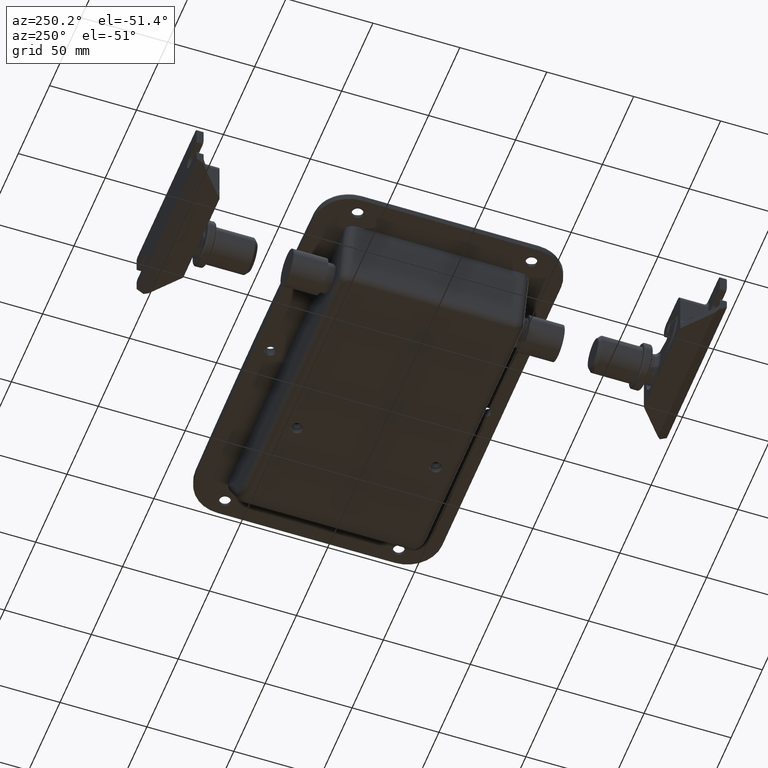
[diagram: clean part render]
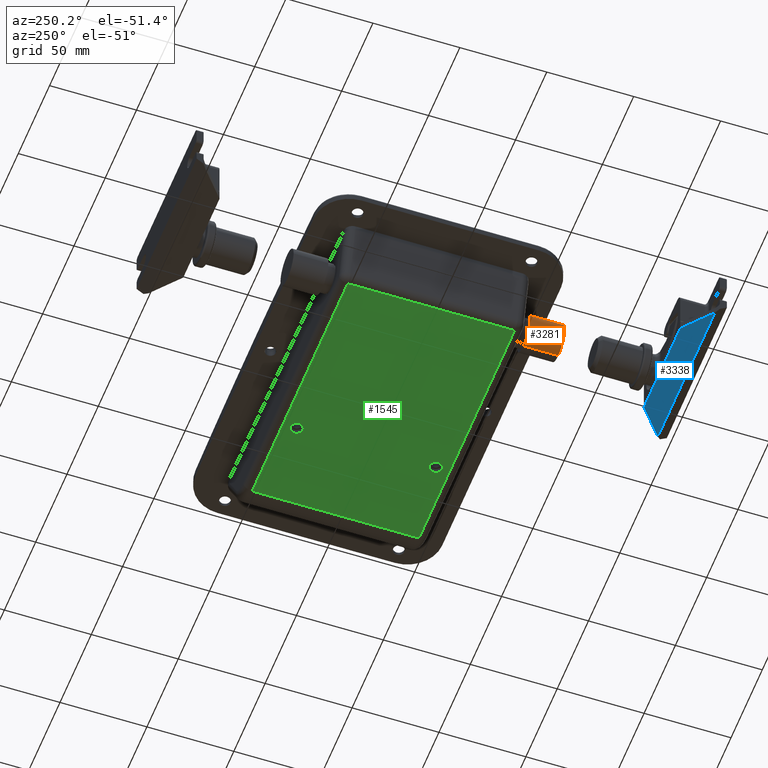
[diagram: same view with three faces highlighted in distinct colors, each labeled with its STEP entity id]
A machine part, auxiliary view with three faces highlighted in distinct colors.
Their STEP definitions:

[orange] entity #3281 — the highlighted cylindrical surface (edge-blend (fillet) strip) has radius 10.5 mm, axis along (-0, 1, -0).
#1138 = VERTEX_POINT ( 'NONE', #8888 ) ;
#1146 = VERTEX_POINT ( 'NONE', #8896 ) ;
#1147 = VERTEX_POINT ( 'NONE', #8897 ) ;
#1160 = VERTEX_POINT ( 'NONE', #8910 ) ;
#3281 = ADVANCED_FACE ( 'NONE', ( #15901 ), #15902, .T. ) ;
#4951 = ORIENTED_EDGE ( 'NONE', *, *, #6340, .T. ) ;
#4952 = ORIENTED_EDGE ( 'NONE', *, *, #6341, .T. ) ;
#4953 = ORIENTED_EDGE ( 'NONE', *, *, #6342, .F. ) ;
#4954 = ORIENTED_EDGE ( 'NONE', *, *, #6343, .F. ) ;
#5447 = EDGE_LOOP ( 'NONE', ( #4951, #4952, #4953, #4954 ) ) ;
#6340 = EDGE_CURVE ( 'NONE', #1138, #1146, #24493, .T. ) ;
#6341 = EDGE_CURVE ( 'NONE', #1146, #1160, #24492, .T. ) ;
#6342 = EDGE_CURVE ( 'NONE', #1147, #1160, #24496, .T. ) ;
#6343 = EDGE_CURVE ( 'NONE', #1138, #1147, #24495, .T. ) ;
#8888 = CARTESIAN_POINT ( 'NONE',  ( 20.00000000000000400, -10.50000000000000000, 0.0000000000000000000 ) ) ;
#8896 = CARTESIAN_POINT ( 'NONE',  ( 20.00000000000000400, 10.50000000000000000, 1.285879139104720800E-015 ) ) ;
#8897 = CARTESIAN_POINT ( 'NONE',  ( 3.432072914847288700E-016, -10.50000000000000000, 0.0000000000000000000 ) ) ;
#8910 = CARTESIAN_POINT ( 'NONE',  ( -3.432072914847288700E-016, 10.50000000000000000, 1.285879139104720800E-015 ) ) ;
#13399 = AXIS2_PLACEMENT_3D ( 'NONE', #17573, #17574, #17575 ) ;
#15901 = FACE_OUTER_BOUND ( 'NONE', #5447, .T. ) ;
#15902 = CYLINDRICAL_SURFACE ( 'NONE', #13399, 10.50000000000000000 ) ;
#17573 = CARTESIAN_POINT ( 'NONE',  ( -42.49999999999999300, -2.042900544551957000E-015, 0.0000000000000000000 ) ) ;
#17574 = DIRECTION ( 'NONE',  ( -1.000000000000000000, -3.268640871283131500E-017, -0.0000000000000000000 ) ) ;
#17575 = DIRECTION ( 'NONE',  ( 0.0000000000000000000, -1.000000000000000000, 0.0000000000000000000 ) ) ;
#23044 = AXIS2_PLACEMENT_3D ( 'NONE', #23564, #23565, #23566 ) ;
#23045 = AXIS2_PLACEMENT_3D ( 'NONE', #23569, #23570, #23571 ) ;
#23564 = CARTESIAN_POINT ( 'NONE',  ( 20.00000000000000400, 0.0000000000000000000, 0.0000000000000000000 ) ) ;
#23565 = DIRECTION ( 'NONE',  ( -1.000000000000000000, -3.268640871283131500E-017, -0.0000000000000000000 ) ) ;
#23566 = DIRECTION ( 'NONE',  ( 0.0000000000000000000, -1.000000000000000000, 0.0000000000000000000 ) ) ;
#23567 = CARTESIAN_POINT ( 'NONE',  ( -42.49999999999999300, 10.49999999999999800, 1.285879139104720800E-015 ) ) ;
#23568 = DIRECTION ( 'NONE',  ( -1.000000000000000000, -3.268640871283131500E-017, -0.0000000000000000000 ) ) ;
#23569 = CARTESIAN_POINT ( 'NONE',  ( 0.0000000000000000000, -6.537281742566265000E-016, 0.0000000000000000000 ) ) ;
#23570 = DIRECTION ( 'NONE',  ( -1.000000000000000000, -3.268640871283131500E-017, -0.0000000000000000000 ) ) ;
#23571 = DIRECTION ( 'NONE',  ( 3.268640871283132100E-017, -1.000000000000000000, 0.0000000000000000000 ) ) ;
#23572 = CARTESIAN_POINT ( 'NONE',  ( -42.49999999999999300, -10.50000000000000200, 0.0000000000000000000 ) ) ;
#23573 = DIRECTION ( 'NONE',  ( -1.000000000000000000, -3.268640871283131500E-017, -0.0000000000000000000 ) ) ;
#24492 = LINE ( 'NONE', #23567, #24494 ) ;
#24493 = CIRCLE ( 'NONE', #23044, 10.50000000000000000 ) ;
#24494 = VECTOR ( 'NONE', #23568, 1000.000000000000000 ) ;
#24495 = LINE ( 'NONE', #23572, #24497 ) ;
#24496 = CIRCLE ( 'NONE', #23045, 10.50000000000000000 ) ;
#24497 = VECTOR ( 'NONE', #23573, 1000.000000000000000 ) ;

[blue] entity #3338 — the highlighted planar face has unit normal (0, 0, 1).
#945 = VERTEX_POINT ( 'NONE', #8695 ) ;
#946 = VERTEX_POINT ( 'NONE', #8696 ) ;
#947 = VERTEX_POINT ( 'NONE', #8697 ) ;
#948 = VERTEX_POINT ( 'NONE', #8698 ) ;
#1299 = EDGE_CURVE ( 'NONE', #945, #948, #7464, .T. ) ;
#1300 = EDGE_CURVE ( 'NONE', #947, #948, #7466, .T. ) ;
#1301 = EDGE_CURVE ( 'NONE', #946, #947, #7468, .T. ) ;
#1302 = EDGE_CURVE ( 'NONE', #945, #946, #7470, .T. ) ;
#3338 = ADVANCED_FACE ( 'NONE', ( #15999 ), #17852, .F. ) ;
#5502 = EDGE_LOOP ( 'NONE', ( #5777, #5778, #5779, #5780 ) ) ;
#5777 = ORIENTED_EDGE ( 'NONE', *, *, #1302, .T. ) ;
#5778 = ORIENTED_EDGE ( 'NONE', *, *, #1301, .T. ) ;
#5779 = ORIENTED_EDGE ( 'NONE', *, *, #1300, .T. ) ;
#5780 = ORIENTED_EDGE ( 'NONE', *, *, #1299, .F. ) ;
#7464 = LINE ( 'NONE', #8963, #7465 ) ;
#7465 = VECTOR ( 'NONE', #8964, 1000.000000000000000 ) ;
#7466 = LINE ( 'NONE', #8965, #7467 ) ;
#7467 = VECTOR ( 'NONE', #8966, 1000.000000000000000 ) ;
#7468 = LINE ( 'NONE', #8967, #7469 ) ;
#7469 = VECTOR ( 'NONE', #8968, 1000.000000000000000 ) ;
#7470 = LINE ( 'NONE', #8969, #7471 ) ;
#7471 = VECTOR ( 'NONE', #8970, 1000.000000000000100 ) ;
#8695 = CARTESIAN_POINT ( 'NONE',  ( 29.00000000000001100, 20.00000000000000000, -15.00000000000000000 ) ) ;
#8696 = CARTESIAN_POINT ( 'NONE',  ( 45.62500000000000700, 5.999999999999998200, -15.00000000000000000 ) ) ;
#8697 = CARTESIAN_POINT ( 'NONE',  ( -45.62500000000001400, 5.999999999999995600, -14.99999999999999600 ) ) ;
#8698 = CARTESIAN_POINT ( 'NONE',  ( -28.99999999999998900, 20.00000000000000000, -15.00000000000000000 ) ) ;
#8963 = CARTESIAN_POINT ( 'NONE',  ( 48.00000000000000700, 20.00000000000000000, -15.00000000000000000 ) ) ;
#8964 = DIRECTION ( 'NONE',  ( -1.000000000000000000, 0.0000000000000000000, 0.0000000000000000000 ) ) ;
#8965 = CARTESIAN_POINT ( 'NONE',  ( -28.99999999999998900, 20.00000000000000000, -15.00000000000000000 ) ) ;
#8966 = DIRECTION ( 'NONE',  ( 0.7649111981170509900, 0.6441357457827796600, -0.0000000000000000000 ) ) ;
#8967 = CARTESIAN_POINT ( 'NONE',  ( 48.00000000000000700, 6.000000000000000000, -15.00000000000000000 ) ) ;
#8968 = DIRECTION ( 'NONE',  ( -1.000000000000000000, -0.0000000000000000000, -0.0000000000000000000 ) ) ;
#8969 = CARTESIAN_POINT ( 'NONE',  ( 29.00000000000001100, 20.00000000000000000, -15.00000000000000000 ) ) ;
#8970 = DIRECTION ( 'NONE',  ( 0.7649111981170506600, -0.6441357457827798800, 0.0000000000000000000 ) ) ;
#13454 = AXIS2_PLACEMENT_3D ( 'NONE', #17853, #17854, #17855 ) ;
#15999 = FACE_OUTER_BOUND ( 'NONE', #5502, .T. ) ;
#17852 = PLANE ( 'NONE',  #13454 ) ;
#17853 = CARTESIAN_POINT ( 'NONE',  ( 48.00000000000000700, 4.000000000000000000, -15.00000000000000000 ) ) ;
#17854 = DIRECTION ( 'NONE',  ( 0.0000000000000000000, -0.0000000000000000000, 1.000000000000000000 ) ) ;
#17855 = DIRECTION ( 'NONE',  ( 1.000000000000000000, 0.0000000000000000000, -0.0000000000000000000 ) ) ;

[green] entity #1545 — the highlighted planar face has unit normal (0, 0, 1).
#129 = VERTEX_POINT ( 'NONE', #1219 ) ;
#130 = VERTEX_POINT ( 'NONE', #1220 ) ;
#133 = VERTEX_POINT ( 'NONE', #1223 ) ;
#134 = VERTEX_POINT ( 'NONE', #1224 ) ;
#251 = VERTEX_POINT ( 'NONE', #8001 ) ;
#252 = VERTEX_POINT ( 'NONE', #8002 ) ;
#253 = VERTEX_POINT ( 'NONE', #8003 ) ;
#254 = VERTEX_POINT ( 'NONE', #8004 ) ;
#1219 = CARTESIAN_POINT ( 'NONE',  ( 93.49999999999998600, -40.00000000000000000, -17.49999999999999600 ) ) ;
#1220 = CARTESIAN_POINT ( 'NONE',  ( 86.49999999999998600, -40.00000000000000000, -17.49999999999999600 ) ) ;
#1223 = CARTESIAN_POINT ( 'NONE',  ( 93.49999999999998600, 40.00000000000000000, -17.49999999999999600 ) ) ;
#1224 = CARTESIAN_POINT ( 'NONE',  ( 86.49999999999998600, 40.00000000000000000, -17.49999999999999600 ) ) ;
#1545 = ADVANCED_FACE ( 'NONE', ( #7775, #7776, #7777 ), #9834, .F. ) ;
#4643 = EDGE_CURVE ( 'NONE', #129, #130, #20000, .T. ) ;
#4647 = EDGE_CURVE ( 'NONE', #133, #134, #20006, .T. ) ;
#5343 = EDGE_LOOP ( 'NONE', ( #7296, #7297 ) ) ;
#5344 = EDGE_LOOP ( 'NONE', ( #7298, #7299, #7300, #7301 ) ) ;
#5376 = EDGE_LOOP ( 'NONE', ( #7294, #7295 ) ) ;
#6179 = EDGE_CURVE ( 'NONE', #251, #252, #20184, .T. ) ;
#6182 = EDGE_CURVE ( 'NONE', #130, #129, #20188, .T. ) ;
#6183 = EDGE_CURVE ( 'NONE', #134, #133, #20190, .T. ) ;
#6184 = EDGE_CURVE ( 'NONE', #253, #254, #20189, .T. ) ;
#6185 = EDGE_CURVE ( 'NONE', #253, #251, #20192, .T. ) ;
#6186 = EDGE_CURVE ( 'NONE', #252, #254, #20194, .T. ) ;
#6606 = AXIS2_PLACEMENT_3D ( 'NONE', #9835, #9836, #9837 ) ;
#7294 = ORIENTED_EDGE ( 'NONE', *, *, #6182, .F. ) ;
#7295 = ORIENTED_EDGE ( 'NONE', *, *, #4643, .F. ) ;
#7296 = ORIENTED_EDGE ( 'NONE', *, *, #6183, .F. ) ;
#7297 = ORIENTED_EDGE ( 'NONE', *, *, #4647, .F. ) ;
#7298 = ORIENTED_EDGE ( 'NONE', *, *, #6184, .F. ) ;
#7299 = ORIENTED_EDGE ( 'NONE', *, *, #6185, .T. ) ;
#7300 = ORIENTED_EDGE ( 'NONE', *, *, #6179, .T. ) ;
#7301 = ORIENTED_EDGE ( 'NONE', *, *, #6186, .T. ) ;
#7775 = FACE_BOUND ( 'NONE', #5376, .T. ) ;
#7776 = FACE_BOUND ( 'NONE', #5343, .T. ) ;
#7777 = FACE_OUTER_BOUND ( 'NONE', #5344, .T. ) ;
#8001 = CARTESIAN_POINT ( 'NONE',  ( 139.1324865405209400, 48.00000000000000000, -17.49999999999999600 ) ) ;
#8002 = CARTESIAN_POINT ( 'NONE',  ( 139.1324865405209400, -48.00000000000000700, -17.49999999999999600 ) ) ;
#8003 = CARTESIAN_POINT ( 'NONE',  ( -13.58899090230922400, 48.00000000000000000, -17.49999999999999600 ) ) ;
#8004 = CARTESIAN_POINT ( 'NONE',  ( -13.58899090230922400, -48.00000000000000700, -17.49999999999999600 ) ) ;
#9834 = PLANE ( 'NONE',  #6606 ) ;
#9835 = CARTESIAN_POINT ( 'NONE',  ( -13.58899090230922200, 53.00000000000000000, -17.49999999999999600 ) ) ;
#9836 = DIRECTION ( 'NONE',  ( 0.0000000000000000000, 0.0000000000000000000, 1.000000000000000000 ) ) ;
#9837 = DIRECTION ( 'NONE',  ( 1.000000000000000000, 0.0000000000000000000, -0.0000000000000000000 ) ) ;
#13778 = AXIS2_PLACEMENT_3D ( 'NONE', #21496, #21497, #21498 ) ;
#13780 = AXIS2_PLACEMENT_3D ( 'NONE', #21506, #21507, #21508 ) ;
#20000 = CIRCLE ( 'NONE', #13778, 3.500000000000003100 ) ;
#20006 = CIRCLE ( 'NONE', #13780, 3.500000000000003100 ) ;
#20184 = LINE ( 'NONE', #22555, #20185 ) ;
#20185 = VECTOR ( 'NONE', #22556, 1000.000000000000000 ) ;
#20188 = CIRCLE ( 'NONE', #22971, 3.500000000000003100 ) ;
#20189 = LINE ( 'NONE', #22569, #20191 ) ;
#20190 = CIRCLE ( 'NONE', #22972, 3.500000000000003100 ) ;
#20191 = VECTOR ( 'NONE', #22570, 1000.000000000000000 ) ;
#20192 = LINE ( 'NONE', #22571, #20193 ) ;
#20193 = VECTOR ( 'NONE', #22572, 1000.000000000000000 ) ;
#20194 = LINE ( 'NONE', #22573, #20195 ) ;
#20195 = VECTOR ( 'NONE', #22574, 1000.000000000000000 ) ;
#21496 = CARTESIAN_POINT ( 'NONE',  ( 89.99999999999998600, -40.00000000000000000, -17.49999999999999600 ) ) ;
#21497 = DIRECTION ( 'NONE',  ( 0.0000000000000000000, 0.0000000000000000000, -1.000000000000000000 ) ) ;
#21498 = DIRECTION ( 'NONE',  ( -1.000000000000000000, 0.0000000000000000000, 0.0000000000000000000 ) ) ;
#21506 = CARTESIAN_POINT ( 'NONE',  ( 89.99999999999998600, 40.00000000000000000, -17.49999999999999600 ) ) ;
#21507 = DIRECTION ( 'NONE',  ( 0.0000000000000000000, 0.0000000000000000000, -1.000000000000000000 ) ) ;
#21508 = DIRECTION ( 'NONE',  ( -1.000000000000000000, 0.0000000000000000000, 0.0000000000000000000 ) ) ;
#22555 = CARTESIAN_POINT ( 'NONE',  ( 139.1324865405209400, 53.00000000000000000, -17.49999999999999600 ) ) ;
#22556 = DIRECTION ( 'NONE',  ( -0.0000000000000000000, -1.000000000000000000, -0.0000000000000000000 ) ) ;
#22563 = CARTESIAN_POINT ( 'NONE',  ( 89.99999999999998600, -40.00000000000000000, -17.49999999999999600 ) ) ;
#22564 = DIRECTION ( 'NONE',  ( 0.0000000000000000000, 0.0000000000000000000, -1.000000000000000000 ) ) ;
#22565 = DIRECTION ( 'NONE',  ( -1.000000000000000000, 0.0000000000000000000, 0.0000000000000000000 ) ) ;
#22566 = CARTESIAN_POINT ( 'NONE',  ( 89.99999999999998600, 40.00000000000000000, -17.49999999999999600 ) ) ;
#22567 = DIRECTION ( 'NONE',  ( 0.0000000000000000000, 0.0000000000000000000, -1.000000000000000000 ) ) ;
#22568 = DIRECTION ( 'NONE',  ( -1.000000000000000000, 0.0000000000000000000, 0.0000000000000000000 ) ) ;
#22569 = CARTESIAN_POINT ( 'NONE',  ( -13.58899090230922400, 53.00000000000000000, -17.49999999999999600 ) ) ;
#22570 = DIRECTION ( 'NONE',  ( -0.0000000000000000000, -1.000000000000000000, -0.0000000000000000000 ) ) ;
#22571 = CARTESIAN_POINT ( 'NONE',  ( -13.58899090230922200, 48.00000000000000000, -17.49999999999999600 ) ) ;
#22572 = DIRECTION ( 'NONE',  ( 1.000000000000000000, -0.0000000000000000000, -0.0000000000000000000 ) ) ;
#22573 = CARTESIAN_POINT ( 'NONE',  ( -13.58899090230922400, -48.00000000000000700, -17.49999999999999600 ) ) ;
#22574 = DIRECTION ( 'NONE',  ( -1.000000000000000000, 0.0000000000000000000, 0.0000000000000000000 ) ) ;
#22971 = AXIS2_PLACEMENT_3D ( 'NONE', #22563, #22564, #22565 ) ;
#22972 = AXIS2_PLACEMENT_3D ( 'NONE', #22566, #22567, #22568 ) ;